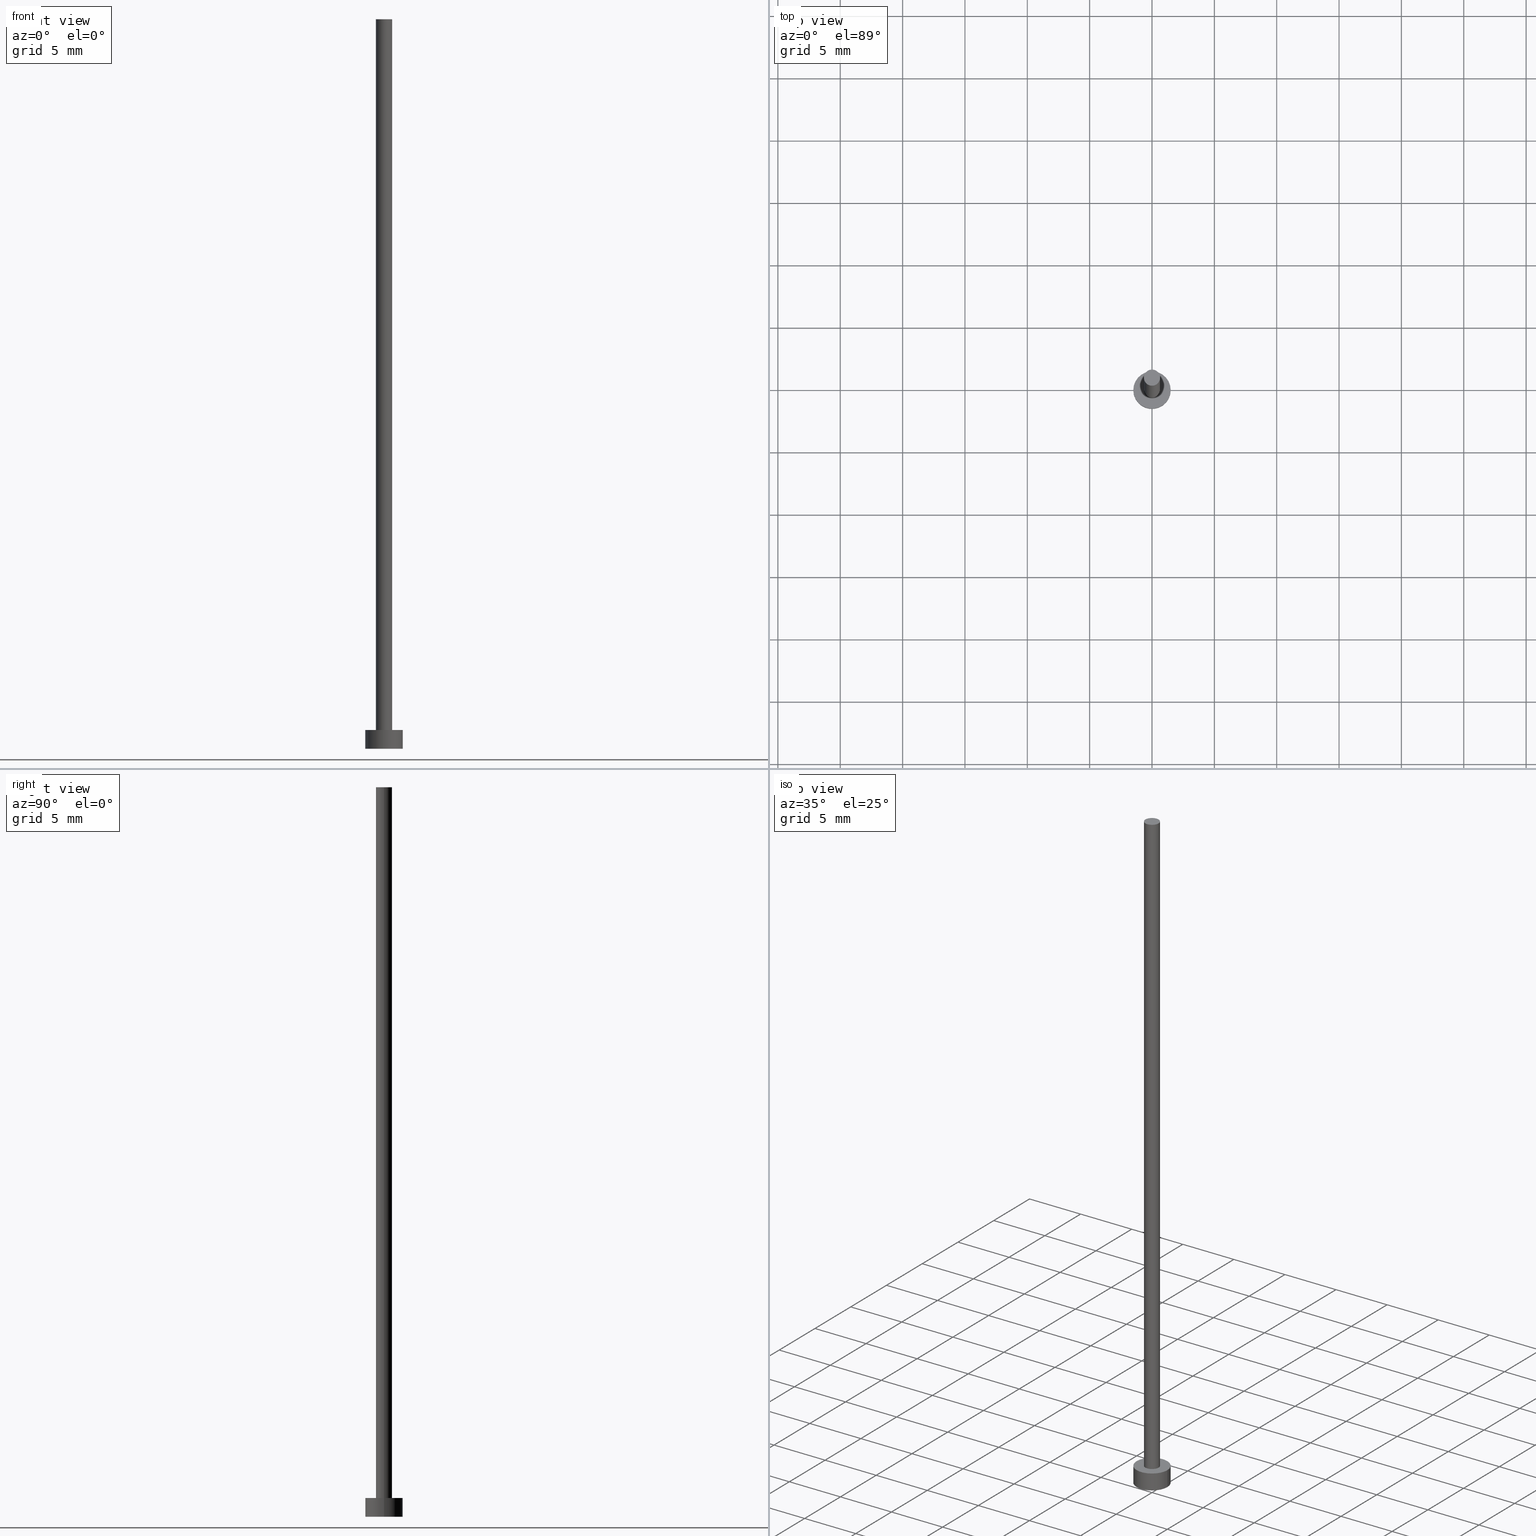
[diagram: canonical four-view strip — front | top / right | iso, engineering-drawing reading convention]
A machine part, canonical four-view strip (front | top / right | iso — engineering-drawing reading convention). The complete STEP part file that produces these views, byte-faithful:
ISO-10303-21;
HEADER;
FILE_DESCRIPTION (( 'STEP AP203' ),
    '1' );
FILE_NAME ('8396.STEP',
    '2023-03-22T09:00:47',
    ( '' ),
    ( '' ),
    'SwSTEP 2.0',
    'SolidWorks 2019',
    '' );
FILE_SCHEMA (( 'CONFIG_CONTROL_DESIGN' ));
ENDSEC;

DATA;
#1 = CARTESIAN_POINT ( 'NONE',  ( 0.000000000000000000, 0.000000000000000000, 58.50000000000000000 ) ) ;
#2 = ADVANCED_FACE ( 'NONE', ( #8 ), #189, .T. ) ;
#3 = CARTESIAN_POINT ( 'NONE',  ( 0.000000000000000000, 0.000000000000000000, 1.500000000000000000 ) ) ;
#4 = CIRCLE ( 'NONE', #105, 0.6500000000000000222 ) ;
#5 = CARTESIAN_POINT ( 'NONE',  ( 0.000000000000000000, 0.000000000000000000, 58.50000000000000000 ) ) ;
#6 = ORIENTED_EDGE ( 'NONE', *, *, #179, .F. ) ;
#7 = CC_DESIGN_PERSON_AND_ORGANIZATION_ASSIGNMENT ( #49, #176, ( #207 ) ) ;
#8 = FACE_OUTER_BOUND ( 'NONE', #183, .T. ) ;
#9 = DIRECTION ( 'NONE',  ( 0.000000000000000000, 0.000000000000000000, 1.000000000000000000 ) ) ;
#10 = DIRECTION ( 'NONE',  ( 0.000000000000000000, 0.000000000000000000, 1.000000000000000000 ) ) ;
#11 = CALENDAR_DATE ( 2023, 22, 3 ) ;
#12 = DIRECTION ( 'NONE',  ( -0.000000000000000000, -0.000000000000000000, -1.000000000000000000 ) ) ;
#13 = APPROVAL_ROLE ( '' ) ;
#14 = CIRCLE ( 'NONE', #246, 1.500000000000000222 ) ;
#15 = ADVANCED_FACE ( 'NONE', ( #173 ), #87, .T. ) ;
#16 = PERSON_AND_ORGANIZATION ( #75, #67 ) ;
#17 =( GEOMETRIC_REPRESENTATION_CONTEXT ( 3 ) GLOBAL_UNCERTAINTY_ASSIGNED_CONTEXT ( ( #247 ) ) GLOBAL_UNIT_ASSIGNED_CONTEXT ( ( #57, #115, #233 ) ) REPRESENTATION_CONTEXT ( 'NONE', 'WORKASPACE' ) );
#18 = CARTESIAN_POINT ( 'NONE',  ( 0.6500000000000000222, 7.960204194457794244E-17, 58.50000000000000000 ) ) ;
#19 = DIRECTION ( 'NONE',  ( -1.000000000000000000, 0.000000000000000000, 0.000000000000000000 ) ) ;
#20 = EDGE_CURVE ( 'NONE', #185, #58, #148, .T. ) ;
#21 = CC_DESIGN_SECURITY_CLASSIFICATION ( #207, ( #92 ) ) ;
#22 = VERTEX_POINT ( 'NONE', #217 ) ;
#23 = VERTEX_POINT ( 'NONE', #26 ) ;
#24 = ORIENTED_EDGE ( 'NONE', *, *, #30, .T. ) ;
#25 = VECTOR ( 'NONE', #63, 1000.000000000000000 ) ;
#26 = CARTESIAN_POINT ( 'NONE',  ( 0.6500000000000000222, 7.960204194457794244E-17, 1.500000000000000000 ) ) ;
#27 = PERSON_AND_ORGANIZATION_ROLE ( 'design_owner' ) ;
#28 = CARTESIAN_POINT ( 'NONE',  ( 0.000000000000000000, 0.000000000000000000, 58.50000000000000000 ) ) ;
#29 = PERSON_AND_ORGANIZATION_ROLE ( 'design_supplier' ) ;
#30 = EDGE_CURVE ( 'NONE', #58, #23, #116, .T. ) ;
#31 = APPROVAL_STATUS ( 'not_yet_approved' ) ;
#32 = AXIS2_PLACEMENT_3D ( 'NONE', #76, #107, #182 ) ;
#33 = APPROVAL_PERSON_ORGANIZATION ( #16, #79, #250 ) ;
#34 = COORDINATED_UNIVERSAL_TIME_OFFSET ( 1, 0, .AHEAD. ) ;
#35 = FACE_OUTER_BOUND ( 'NONE', #214, .T. ) ;
#36 = ORIENTED_EDGE ( 'NONE', *, *, #208, .F. ) ;
#37 = DIRECTION ( 'NONE',  ( 1.000000000000000000, 0.000000000000000000, 0.000000000000000000 ) ) ;
#38 = DIRECTION ( 'NONE',  ( -0.000000000000000000, -0.000000000000000000, -1.000000000000000000 ) ) ;
#39 = EDGE_LOOP ( 'NONE', ( #236, #202, #198, #146 ) ) ;
#40 = AXIS2_PLACEMENT_3D ( 'NONE', #78, #117, #99 ) ;
#41 = ORIENTED_EDGE ( 'NONE', *, *, #30, .F. ) ;
#42 = CARTESIAN_POINT ( 'NONE',  ( 0.000000000000000000, 0.000000000000000000, 1.500000000000000000 ) ) ;
#43 = DIRECTION ( 'NONE',  ( 0.000000000000000000, 0.000000000000000000, 1.000000000000000000 ) ) ;
#44 = DIRECTION ( 'NONE',  ( -1.000000000000000000, 0.000000000000000000, 0.000000000000000000 ) ) ;
#45 = SHAPE_DEFINITION_REPRESENTATION ( #118, #94 ) ;
#46 = DIRECTION ( 'NONE',  ( -0.000000000000000000, -0.000000000000000000, -1.000000000000000000 ) ) ;
#47 = DIRECTION ( 'NONE',  ( 0.000000000000000000, 0.000000000000000000, 1.000000000000000000 ) ) ;
#48 = VERTEX_POINT ( 'NONE', #221 ) ;
#49 = PERSON_AND_ORGANIZATION ( #75, #67 ) ;
#50 = CALENDAR_DATE ( 2023, 22, 3 ) ;
#51 = LOCAL_TIME ( 10, 0, 47.00000000000000000, #34 ) ;
#52 = CC_DESIGN_PERSON_AND_ORGANIZATION_ASSIGNMENT ( #90, #29, ( #92 ) ) ;
#53 = AXIS2_PLACEMENT_3D ( 'NONE', #1, #43, #162 ) ;
#54 = LINE ( 'NONE', #209, #191 ) ;
#55 = EDGE_CURVE ( 'NONE', #81, #48, #141, .T. ) ;
#56 = CARTESIAN_POINT ( 'NONE',  ( 0.000000000000000000, 0.000000000000000000, 1.500000000000000000 ) ) ;
#57 =( LENGTH_UNIT ( ) NAMED_UNIT ( * ) SI_UNIT ( .MILLI., .METRE. ) );
#58 = VERTEX_POINT ( 'NONE', #70 ) ;
#59 = AXIS2_PLACEMENT_3D ( 'NONE', #56, #255, #19 ) ;
#60 = ORIENTED_EDGE ( 'NONE', *, *, #55, .T. ) ;
#61 = CC_DESIGN_APPROVAL ( #79, ( #207 ) ) ;
#62 = ORIENTED_EDGE ( 'NONE', *, *, #55, .F. ) ;
#63 = DIRECTION ( 'NONE',  ( -0.000000000000000000, -0.000000000000000000, -1.000000000000000000 ) ) ;
#64 = EDGE_LOOP ( 'NONE', ( #121, #106, #150, #234 ) ) ;
#65 = APPROVAL_STATUS ( 'not_yet_approved' ) ;
#66 = LINE ( 'NONE', #152, #172 ) ;
#67 = ORGANIZATION ( 'NEUR�EN�', 'NEUR�EN�', '' ) ;
#68 = EDGE_CURVE ( 'NONE', #48, #22, #66, .T. ) ;
#69 = APPROVAL_STATUS ( 'not_yet_approved' ) ;
#70 = CARTESIAN_POINT ( 'NONE',  ( -0.6500000000000000222, 0.000000000000000000, 1.500000000000000000 ) ) ;
#71 = COORDINATED_UNIVERSAL_TIME_OFFSET ( 1, 0, .AHEAD. ) ;
#72 = CARTESIAN_POINT ( 'NONE',  ( 0.000000000000000000, 0.000000000000000000, 0.000000000000000000 ) ) ;
#73 = AXIS2_PLACEMENT_3D ( 'NONE', #91, #108, #126 ) ;
#74 = CIRCLE ( 'NONE', #157, 0.6500000000000000222 ) ;
#75 = PERSON ( 'NEUR�EN�', 'NEUR�EN�', 'NEUR�EN�', ('NEUR�EN�'), ('NEUR�EN�'), ('NEUR�EN�') ) ;
#76 = CARTESIAN_POINT ( 'NONE',  ( 0.000000000000000000, 0.000000000000000000, 58.50000000000000000 ) ) ;
#77 = PRODUCT ( '8396', '8396', '', ( #93 ) ) ;
#78 = CARTESIAN_POINT ( 'NONE',  ( 0.000000000000000000, 0.000000000000000000, 0.000000000000000000 ) ) ;
#79 = APPROVAL ( #65, 'NEUR�EN�' ) ;
#80 = LINE ( 'NONE', #180, #25 ) ;
#81 = VERTEX_POINT ( 'NONE', #110 ) ;
#82 = PRODUCT_RELATED_PRODUCT_CATEGORY ( 'detail', '', ( #77 ) ) ;
#83 = CC_DESIGN_PERSON_AND_ORGANIZATION_ASSIGNMENT ( #112, #156, ( #92 ) ) ;
#84 = CC_DESIGN_APPROVAL ( #114, ( #144 ) ) ;
#85 = ORIENTED_EDGE ( 'NONE', *, *, #177, .F. ) ;
#86 = DIRECTION ( 'NONE',  ( 0.000000000000000000, 0.000000000000000000, 1.000000000000000000 ) ) ;
#87 = CYLINDRICAL_SURFACE ( 'NONE', #197, 1.500000000000000222 ) ;
#88 = DIRECTION ( 'NONE',  ( 0.000000000000000000, 0.000000000000000000, 1.000000000000000000 ) ) ;
#89 = VERTEX_POINT ( 'NONE', #223 ) ;
#90 = PERSON_AND_ORGANIZATION ( #75, #67 ) ;
#91 = CARTESIAN_POINT ( 'NONE',  ( 0.000000000000000000, 0.000000000000000000, 58.50000000000000000 ) ) ;
#92 = PRODUCT_DEFINITION_FORMATION_WITH_SPECIFIED_SOURCE ( 'LIBOVOLN�', '', #77, .NOT_KNOWN. ) ;
#93 = MECHANICAL_CONTEXT ( 'NONE', #229, 'mechanical' ) ;
#94 = ADVANCED_BREP_SHAPE_REPRESENTATION ( '8396', ( #104, #164 ), #17 ) ;
#95 = PERSON_AND_ORGANIZATION ( #75, #67 ) ;
#96 = VECTOR ( 'NONE', #129, 1000.000000000000000 ) ;
#97 = CC_DESIGN_PERSON_AND_ORGANIZATION_ASSIGNMENT ( #95, #222, ( #144 ) ) ;
#98 = CYLINDRICAL_SURFACE ( 'NONE', #59, 1.500000000000000222 ) ;
#99 = DIRECTION ( 'NONE',  ( 1.000000000000000000, 0.000000000000000000, 0.000000000000000000 ) ) ;
#100 = ORIENTED_EDGE ( 'NONE', *, *, #203, .T. ) ;
#101 = CIRCLE ( 'NONE', #40, 1.500000000000000222 ) ;
#102 = FACE_BOUND ( 'NONE', #241, .T. ) ;
#103 = DIRECTION ( 'NONE',  ( -1.000000000000000000, 0.000000000000000000, 0.000000000000000000 ) ) ;
#104 = MANIFOLD_SOLID_BREP ( 'P�idat vysunut�m3', #252 ) ;
#105 = AXIS2_PLACEMENT_3D ( 'NONE', #5, #88, #161 ) ;
#106 = ORIENTED_EDGE ( 'NONE', *, *, #177, .T. ) ;
#107 = DIRECTION ( 'NONE',  ( 0.000000000000000000, 0.000000000000000000, 1.000000000000000000 ) ) ;
#108 = DIRECTION ( 'NONE',  ( -0.000000000000000000, -0.000000000000000000, -1.000000000000000000 ) ) ;
#109 = PERSON_AND_ORGANIZATION ( #75, #67 ) ;
#110 = CARTESIAN_POINT ( 'NONE',  ( -1.500000000000000222, 0.000000000000000000, 1.500000000000000000 ) ) ;
#111 = COORDINATED_UNIVERSAL_TIME_OFFSET ( 1, 0, .AHEAD. ) ;
#112 = PERSON_AND_ORGANIZATION ( #75, #67 ) ;
#113 = PERSON_AND_ORGANIZATION ( #75, #67 ) ;
#114 = APPROVAL ( #69, 'NEUR�EN�' ) ;
#115 =( NAMED_UNIT ( * ) PLANE_ANGLE_UNIT ( ) SI_UNIT ( $, .RADIAN. ) );
#116 = CIRCLE ( 'NONE', #227, 0.6500000000000000222 ) ;
#117 = DIRECTION ( 'NONE',  ( 0.000000000000000000, 0.000000000000000000, 1.000000000000000000 ) ) ;
#118 = PRODUCT_DEFINITION_SHAPE ( 'NONE', 'NONE',  #144 ) ;
#119 = DIRECTION ( 'NONE',  ( 0.000000000000000000, 0.000000000000000000, 1.000000000000000000 ) ) ;
#120 = APPLICATION_PROTOCOL_DEFINITION ( 'international standard', 'config_control_design', 1994, #229 ) ;
#121 = ORIENTED_EDGE ( 'NONE', *, *, #174, .F. ) ;
#122 = ORIENTED_EDGE ( 'NONE', *, *, #174, .T. ) ;
#123 = AXIS2_PLACEMENT_3D ( 'NONE', #28, #125, #103 ) ;
#124 = ADVANCED_FACE ( 'NONE', ( #131 ), #204, .T. ) ;
#125 = DIRECTION ( 'NONE',  ( -0.000000000000000000, -0.000000000000000000, -1.000000000000000000 ) ) ;
#126 = DIRECTION ( 'NONE',  ( -1.000000000000000000, 0.000000000000000000, 0.000000000000000000 ) ) ;
#127 = CC_DESIGN_DATE_AND_TIME_ASSIGNMENT ( #206, #151, ( #144 ) ) ;
#128 = DIRECTION ( 'NONE',  ( 1.000000000000000000, 0.000000000000000000, 0.000000000000000000 ) ) ;
#129 = DIRECTION ( 'NONE',  ( -0.000000000000000000, -0.000000000000000000, -1.000000000000000000 ) ) ;
#130 = CALENDAR_DATE ( 2023, 22, 3 ) ;
#131 = FACE_OUTER_BOUND ( 'NONE', #64, .T. ) ;
#132 = APPROVAL_ROLE ( '' ) ;
#133 = ORIENTED_EDGE ( 'NONE', *, *, #20, .T. ) ;
#134 = CALENDAR_DATE ( 2023, 22, 3 ) ;
#135 = EDGE_CURVE ( 'NONE', #48, #81, #14, .T. ) ;
#136 = CIRCLE ( 'NONE', #159, 1.500000000000000222 ) ;
#137 = DATE_AND_TIME ( #155, #138 ) ;
#138 = LOCAL_TIME ( 10, 0, 47.00000000000000000, #111 ) ;
#139 = FACE_OUTER_BOUND ( 'NONE', #238, .T. ) ;
#140 = CARTESIAN_POINT ( 'NONE',  ( 0.000000000000000000, 0.000000000000000000, 0.000000000000000000 ) ) ;
#141 = CIRCLE ( 'NONE', #254, 1.500000000000000222 ) ;
#142 = DIRECTION ( 'NONE',  ( 0.000000000000000000, 0.000000000000000000, 1.000000000000000000 ) ) ;
#143 = CARTESIAN_POINT ( 'NONE',  ( 0.000000000000000000, 0.000000000000000000, 1.500000000000000000 ) ) ;
#144 = PRODUCT_DEFINITION ( 'NEZN�M�', '', #92, #201 ) ;
#145 = CIRCLE ( 'NONE', #32, 0.6500000000000000222 ) ;
#146 = ORIENTED_EDGE ( 'NONE', *, *, #188, .F. ) ;
#147 = LOCAL_TIME ( 10, 0, 47.00000000000000000, #71 ) ;
#148 = LINE ( 'NONE', #219, #96 ) ;
#149 = PLANE ( 'NONE',  #53 ) ;
#150 = ORIENTED_EDGE ( 'NONE', *, *, #208, .T. ) ;
#151 = DATE_TIME_ROLE ( 'creation_date' ) ;
#152 = CARTESIAN_POINT ( 'NONE',  ( 1.500000000000000222, 1.836970198721030181E-16, 1.500000000000000000 ) ) ;
#153 = COORDINATED_UNIVERSAL_TIME_OFFSET ( 1, 0, .AHEAD. ) ;
#154 = ORIENTED_EDGE ( 'NONE', *, *, #203, .F. ) ;
#155 = CALENDAR_DATE ( 2023, 22, 3 ) ;
#156 = PERSON_AND_ORGANIZATION_ROLE ( 'creator' ) ;
#157 = AXIS2_PLACEMENT_3D ( 'NONE', #143, #86, #128 ) ;
#158 = ADVANCED_FACE ( 'NONE', ( #102, #139 ), #160, .T. ) ;
#159 = AXIS2_PLACEMENT_3D ( 'NONE', #140, #230, #37 ) ;
#160 = PLANE ( 'NONE',  #237 ) ;
#161 = DIRECTION ( 'NONE',  ( 1.000000000000000000, 0.000000000000000000, 0.000000000000000000 ) ) ;
#162 = DIRECTION ( 'NONE',  ( 1.000000000000000000, 0.000000000000000000, -0.000000000000000000 ) ) ;
#163 = EDGE_CURVE ( 'NONE', #89, #22, #136, .T. ) ;
#164 = AXIS2_PLACEMENT_3D ( 'NONE', #72, #47, #224 ) ;
#165 = CARTESIAN_POINT ( 'NONE',  ( 0.000000000000000000, 0.000000000000000000, 1.500000000000000000 ) ) ;
#166 = CARTESIAN_POINT ( 'NONE',  ( 0.000000000000000000, 0.000000000000000000, 0.000000000000000000 ) ) ;
#167 = ORIENTED_EDGE ( 'NONE', *, *, #188, .T. ) ;
#168 = VERTEX_POINT ( 'NONE', #18 ) ;
#169 = CARTESIAN_POINT ( 'NONE',  ( 0.000000000000000000, 0.000000000000000000, 1.500000000000000000 ) ) ;
#170 = ORIENTED_EDGE ( 'NONE', *, *, #135, .T. ) ;
#171 = DATE_AND_TIME ( #50, #228 ) ;
#172 = VECTOR ( 'NONE', #46, 1000.000000000000000 ) ;
#173 = FACE_OUTER_BOUND ( 'NONE', #239, .T. ) ;
#174 = EDGE_CURVE ( 'NONE', #168, #185, #145, .T. ) ;
#175 = APPROVAL_DATE_TIME ( #137, #215 ) ;
#176 = PERSON_AND_ORGANIZATION_ROLE ( 'classification_officer' ) ;
#177 = EDGE_CURVE ( 'NONE', #168, #23, #80, .T. ) ;
#178 = AXIS2_PLACEMENT_3D ( 'NONE', #166, #142, #212 ) ;
#179 = EDGE_CURVE ( 'NONE', #22, #89, #101, .T. ) ;
#180 = CARTESIAN_POINT ( 'NONE',  ( 0.6500000000000000222, 7.960204194457794244E-17, 58.50000000000000000 ) ) ;
#181 = FACE_OUTER_BOUND ( 'NONE', #39, .T. ) ;
#182 = DIRECTION ( 'NONE',  ( 1.000000000000000000, 0.000000000000000000, 0.000000000000000000 ) ) ;
#183 = EDGE_LOOP ( 'NONE', ( #85, #154, #133, #24 ) ) ;
#184 = LOCAL_TIME ( 10, 0, 47.00000000000000000, #153 ) ;
#185 = VERTEX_POINT ( 'NONE', #210 ) ;
#186 = DIRECTION ( 'NONE',  ( 1.000000000000000000, 0.000000000000000000, 0.000000000000000000 ) ) ;
#187 = APPROVAL_DATE_TIME ( #190, #114 ) ;
#188 = EDGE_CURVE ( 'NONE', #81, #89, #54, .T. ) ;
#189 = CYLINDRICAL_SURFACE ( 'NONE', #73, 0.6500000000000000222 ) ;
#190 = DATE_AND_TIME ( #130, #184 ) ;
#191 = VECTOR ( 'NONE', #38, 1000.000000000000000 ) ;
#192 = DATE_AND_TIME ( #134, #147 ) ;
#193 = PERSON_AND_ORGANIZATION ( #75, #67 ) ;
#194 = DIRECTION ( 'NONE',  ( 1.000000000000000000, 0.000000000000000000, 0.000000000000000000 ) ) ;
#195 = ADVANCED_FACE ( 'NONE', ( #181 ), #98, .T. ) ;
#196 = ORIENTED_EDGE ( 'NONE', *, *, #163, .F. ) ;
#197 = AXIS2_PLACEMENT_3D ( 'NONE', #216, #12, #44 ) ;
#198 = ORIENTED_EDGE ( 'NONE', *, *, #179, .T. ) ;
#199 = ORIENTED_EDGE ( 'NONE', *, *, #163, .T. ) ;
#200 = APPROVAL_PERSON_ORGANIZATION ( #193, #114, #132 ) ;
#201 = DESIGN_CONTEXT ( 'detailed design', #251, 'design' ) ;
#202 = ORIENTED_EDGE ( 'NONE', *, *, #68, .T. ) ;
#203 = EDGE_CURVE ( 'NONE', #185, #168, #4, .T. ) ;
#204 = CYLINDRICAL_SURFACE ( 'NONE', #123, 0.6500000000000000222 ) ;
#205 = APPLICATION_PROTOCOL_DEFINITION ( 'international standard', 'config_control_design', 1994, #251 ) ;
#206 = DATE_AND_TIME ( #11, #51 ) ;
#207 = SECURITY_CLASSIFICATION ( '', '', #249 ) ;
#208 = EDGE_CURVE ( 'NONE', #23, #58, #74, .T. ) ;
#209 = CARTESIAN_POINT ( 'NONE',  ( -1.500000000000000222, 0.000000000000000000, 1.500000000000000000 ) ) ;
#210 = CARTESIAN_POINT ( 'NONE',  ( -0.6500000000000000222, 0.000000000000000000, 58.50000000000000000 ) ) ;
#211 = CC_DESIGN_DATE_AND_TIME_ASSIGNMENT ( #192, #244, ( #207 ) ) ;
#212 = DIRECTION ( 'NONE',  ( 1.000000000000000000, 0.000000000000000000, -0.000000000000000000 ) ) ;
#213 = EDGE_LOOP ( 'NONE', ( #100, #122 ) ) ;
#214 = EDGE_LOOP ( 'NONE', ( #196, #6 ) ) ;
#215 = APPROVAL ( #31, 'NEUR�EN�' ) ;
#216 = CARTESIAN_POINT ( 'NONE',  ( 0.000000000000000000, 0.000000000000000000, 1.500000000000000000 ) ) ;
#217 = CARTESIAN_POINT ( 'NONE',  ( 1.500000000000000222, 1.836970198721030181E-16, 0.000000000000000000 ) ) ;
#218 = DIRECTION ( 'NONE',  ( 1.000000000000000000, 0.000000000000000000, -0.000000000000000000 ) ) ;
#219 = CARTESIAN_POINT ( 'NONE',  ( -0.6500000000000000222, 0.000000000000000000, 58.50000000000000000 ) ) ;
#220 = APPROVAL_DATE_TIME ( #171, #79 ) ;
#221 = CARTESIAN_POINT ( 'NONE',  ( 1.500000000000000222, 1.836970198721030181E-16, 1.500000000000000000 ) ) ;
#222 = PERSON_AND_ORGANIZATION_ROLE ( 'creator' ) ;
#223 = CARTESIAN_POINT ( 'NONE',  ( -1.500000000000000222, 0.000000000000000000, 0.000000000000000000 ) ) ;
#224 = DIRECTION ( 'NONE',  ( 1.000000000000000000, 0.000000000000000000, 0.000000000000000000 ) ) ;
#225 = COORDINATED_UNIVERSAL_TIME_OFFSET ( 1, 0, .AHEAD. ) ;
#226 = APPROVAL_PERSON_ORGANIZATION ( #109, #215, #13 ) ;
#227 = AXIS2_PLACEMENT_3D ( 'NONE', #42, #248, #186 ) ;
#228 = LOCAL_TIME ( 10, 0, 47.00000000000000000, #225 ) ;
#229 = APPLICATION_CONTEXT ( 'configuration controlled 3d designs of mechanical parts and assemblies' ) ;
#230 = DIRECTION ( 'NONE',  ( 0.000000000000000000, 0.000000000000000000, 1.000000000000000000 ) ) ;
#231 = PLANE ( 'NONE',  #178 ) ;
#232 = CC_DESIGN_APPROVAL ( #215, ( #92 ) ) ;
#233 =( NAMED_UNIT ( * ) SI_UNIT ( $, .STERADIAN. ) SOLID_ANGLE_UNIT ( ) );
#234 = ORIENTED_EDGE ( 'NONE', *, *, #20, .F. ) ;
#235 = ADVANCED_FACE ( 'NONE', ( #35 ), #231, .F. ) ;
#236 = ORIENTED_EDGE ( 'NONE', *, *, #135, .F. ) ;
#237 = AXIS2_PLACEMENT_3D ( 'NONE', #169, #119, #218 ) ;
#238 = EDGE_LOOP ( 'NONE', ( #60, #170 ) ) ;
#239 = EDGE_LOOP ( 'NONE', ( #243, #62, #167, #199 ) ) ;
#240 = FACE_OUTER_BOUND ( 'NONE', #213, .T. ) ;
#241 = EDGE_LOOP ( 'NONE', ( #41, #36 ) ) ;
#242 = CC_DESIGN_PERSON_AND_ORGANIZATION_ASSIGNMENT ( #113, #27, ( #77 ) ) ;
#243 = ORIENTED_EDGE ( 'NONE', *, *, #68, .F. ) ;
#244 = DATE_TIME_ROLE ( 'classification_date' ) ;
#245 = DIRECTION ( 'NONE',  ( 1.000000000000000000, 0.000000000000000000, 0.000000000000000000 ) ) ;
#246 = AXIS2_PLACEMENT_3D ( 'NONE', #165, #9, #194 ) ;
#247 = UNCERTAINTY_MEASURE_WITH_UNIT (LENGTH_MEASURE( 1.000000000000000082E-05 ), #57, 'distance_accuracy_value', 'NONE');
#248 = DIRECTION ( 'NONE',  ( 0.000000000000000000, 0.000000000000000000, 1.000000000000000000 ) ) ;
#249 = SECURITY_CLASSIFICATION_LEVEL ( 'unclassified' ) ;
#250 = APPROVAL_ROLE ( '' ) ;
#251 = APPLICATION_CONTEXT ( 'configuration controlled 3d designs of mechanical parts and assemblies' ) ;
#252 = CLOSED_SHELL ( 'NONE', ( #124, #195, #15, #158, #235, #2, #253 ) ) ;
#253 = ADVANCED_FACE ( 'NONE', ( #240 ), #149, .T. ) ;
#254 = AXIS2_PLACEMENT_3D ( 'NONE', #3, #10, #245 ) ;
#255 = DIRECTION ( 'NONE',  ( -0.000000000000000000, -0.000000000000000000, -1.000000000000000000 ) ) ;
ENDSEC;
END-ISO-10303-21;
